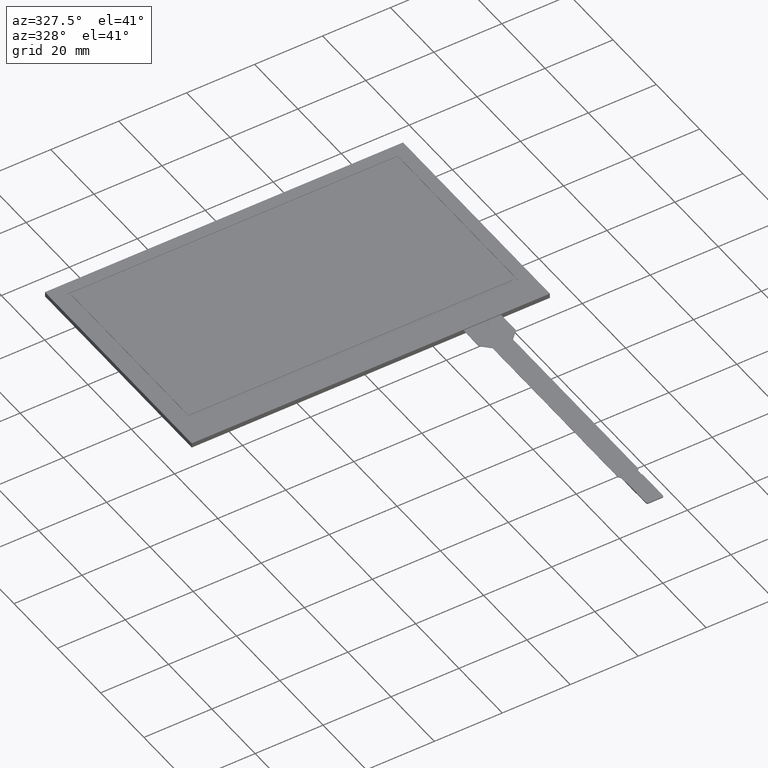
[diagram: clean part render]
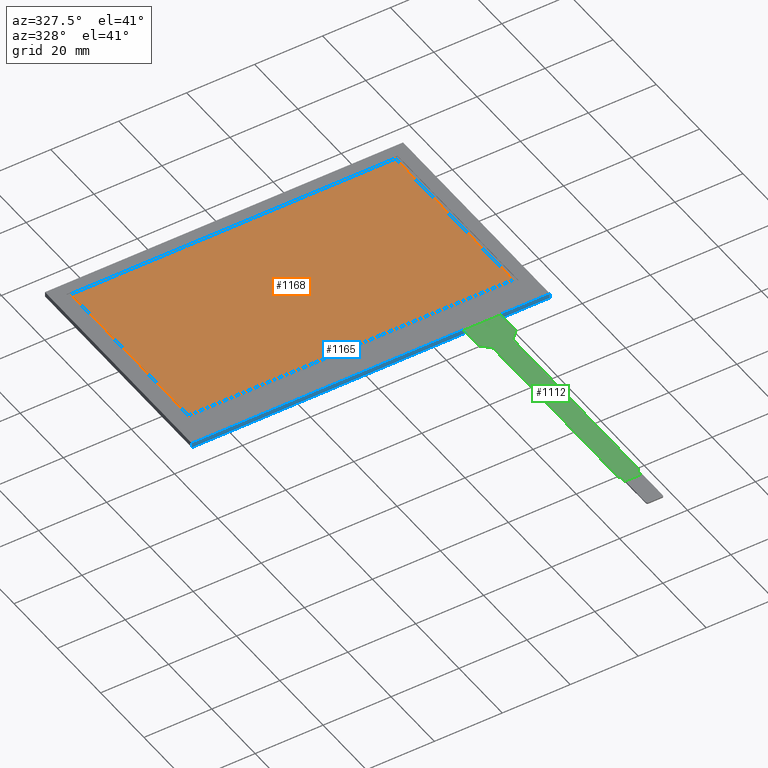
[diagram: same view with three faces highlighted in distinct colors, each labeled with its STEP entity id]
A machine part, auxiliary view with three faces highlighted in distinct colors.
Their STEP definitions:

[orange] entity #1168 — the highlighted planar face has unit normal (0, 0, 1).
#84=PLANE('',#1275);
#143=FACE_OUTER_BOUND('',#205,.T.);
#205=EDGE_LOOP('',(#1089,#1090,#1091,#1092));
#305=LINE('',#1844,#439);
#309=LINE('',#1852,#443);
#312=LINE('',#1858,#446);
#315=LINE('',#1863,#449);
#439=VECTOR('',#1521,10.);
#443=VECTOR('',#1527,10.);
#446=VECTOR('',#1532,10.);
#449=VECTOR('',#1537,10.);
#587=VERTEX_POINT('',#1842);
#588=VERTEX_POINT('',#1843);
#591=VERTEX_POINT('',#1851);
#593=VERTEX_POINT('',#1857);
#737=EDGE_CURVE('',#587,#588,#305,.T.);
#741=EDGE_CURVE('',#591,#587,#309,.T.);
#744=EDGE_CURVE('',#593,#591,#312,.T.);
#747=EDGE_CURVE('',#588,#593,#315,.T.);
#1089=ORIENTED_EDGE('',*,*,#737,.T.);
#1090=ORIENTED_EDGE('',*,*,#747,.T.);
#1091=ORIENTED_EDGE('',*,*,#744,.T.);
#1092=ORIENTED_EDGE('',*,*,#741,.T.);
#1168=ADVANCED_FACE('',(#143),#84,.T.);
#1275=AXIS2_PLACEMENT_3D('',#1915,#1583,#1584);
#1521=DIRECTION('',(1.,0.,0.));
#1527=DIRECTION('',(0.,-1.,0.));
#1532=DIRECTION('',(-1.,0.,0.));
#1537=DIRECTION('',(0.,1.,0.));
#1583=DIRECTION('center_axis',(0.,0.,1.));
#1584=DIRECTION('ref_axis',(1.,0.,0.));
#1842=CARTESIAN_POINT('',(-47.77,-27.18,0.));
#1843=CARTESIAN_POINT('',(47.77,-27.18,0.));
#1844=CARTESIAN_POINT('',(-23.91,-27.18,0.));
#1851=CARTESIAN_POINT('',(-47.77,27.18,0.));
#1852=CARTESIAN_POINT('',(-47.77,12.2725,0.));
#1857=CARTESIAN_POINT('',(47.77,27.18,0.));
#1858=CARTESIAN_POINT('',(23.86,27.18,0.));
#1863=CARTESIAN_POINT('',(47.77,-14.9075,0.));
#1915=CARTESIAN_POINT('Origin',(-0.0499999999999989,-2.63500000000001,0.));

[blue] entity #1165 — the highlighted planar face has unit normal (0, -1, 0).
#40=FACE_BOUND('',#202,.T.);
#81=PLANE('',#1272);
#140=FACE_OUTER_BOUND('',#201,.T.);
#201=EDGE_LOOP('',(#1073,#1074,#1075,#1076));
#202=EDGE_LOOP('',(#1077,#1078,#1079,#1080));
#217=LINE('',#1625,#351);
#240=LINE('',#1685,#374);
#245=LINE('',#1696,#379);
#304=LINE('',#1840,#438);
#331=LINE('',#1897,#465);
#335=LINE('',#1904,#469);
#336=LINE('',#1907,#470);
#337=LINE('',#1908,#471);
#351=VECTOR('',#1307,10.);
#374=VECTOR('',#1364,10.);
#379=VECTOR('',#1375,10.);
#438=VECTOR('',#1518,10.);
#465=VECTOR('',#1565,10.);
#469=VECTOR('',#1571,10.);
#470=VECTOR('',#1574,10.);
#471=VECTOR('',#1575,10.);
#519=VERTEX_POINT('',#1622);
#520=VERTEX_POINT('',#1624);
#540=VERTEX_POINT('',#1684);
#543=VERTEX_POINT('',#1694);
#605=VERTEX_POINT('',#1894);
#606=VERTEX_POINT('',#1896);
#608=VERTEX_POINT('',#1902);
#609=VERTEX_POINT('',#1906);
#628=EDGE_CURVE('',#520,#519,#217,.T.);
#658=EDGE_CURVE('',#540,#520,#240,.T.);
#664=EDGE_CURVE('',#519,#543,#245,.T.);
#736=EDGE_CURVE('',#543,#540,#304,.T.);
#763=EDGE_CURVE('',#605,#606,#331,.T.);
#767=EDGE_CURVE('',#605,#608,#335,.T.);
#768=EDGE_CURVE('',#609,#608,#336,.T.);
#769=EDGE_CURVE('',#606,#609,#337,.T.);
#1073=ORIENTED_EDGE('',*,*,#763,.F.);
#1074=ORIENTED_EDGE('',*,*,#767,.T.);
#1075=ORIENTED_EDGE('',*,*,#768,.F.);
#1076=ORIENTED_EDGE('',*,*,#769,.F.);
#1077=ORIENTED_EDGE('',*,*,#664,.T.);
#1078=ORIENTED_EDGE('',*,*,#736,.T.);
#1079=ORIENTED_EDGE('',*,*,#658,.T.);
#1080=ORIENTED_EDGE('',*,*,#628,.T.);
#1165=ADVANCED_FACE('',(#140,#40),#81,.T.);
#1272=AXIS2_PLACEMENT_3D('',#1905,#1572,#1573);
#1307=DIRECTION('',(1.,8.42674022485887E-17,0.));
#1364=DIRECTION('',(0.,0.,1.));
#1375=DIRECTION('',(0.,0.,-1.));
#1518=DIRECTION('',(-1.,-8.42674022485887E-17,0.));
#1565=DIRECTION('',(1.,8.42674022485887E-17,0.));
#1571=DIRECTION('',(0.,0.,-1.));
#1572=DIRECTION('center_axis',(8.42674022485887E-17,-1.,0.));
#1573=DIRECTION('ref_axis',(-1.,-8.42674022485887E-17,0.));
#1574=DIRECTION('',(-1.,-8.42674022485887E-17,0.));
#1575=DIRECTION('',(0.,0.,-1.));
#1622=CARTESIAN_POINT('',(38.25,-36.55,-0.2));
#1624=CARTESIAN_POINT('',(27.25,-36.55,-0.2));
#1625=CARTESIAN_POINT('',(42.7,-36.55,-0.2));
#1684=CARTESIAN_POINT('',(27.25,-36.55,-0.3));
#1685=CARTESIAN_POINT('',(27.25,-36.55,-0.1));
#1694=CARTESIAN_POINT('',(38.25,-36.55,-0.3));
#1696=CARTESIAN_POINT('',(38.25,-36.55,-0.1));
#1840=CARTESIAN_POINT('',(42.7,-36.55,-0.3));
#1894=CARTESIAN_POINT('',(-52.75,-36.55,0.));
#1896=CARTESIAN_POINT('',(52.65,-36.55,0.));
#1897=CARTESIAN_POINT('',(-52.75,-36.55,0.));
#1902=CARTESIAN_POINT('',(-52.75,-36.55,-1.4));
#1904=CARTESIAN_POINT('',(-52.75,-36.55,0.));
#1905=CARTESIAN_POINT('Origin',(52.65,-36.55,0.));
#1906=CARTESIAN_POINT('',(52.65,-36.55,-1.4));
#1907=CARTESIAN_POINT('',(-52.75,-36.55,-1.4));
#1908=CARTESIAN_POINT('',(52.65,-36.55,0.));

[green] entity #1112 — the highlighted planar face has unit normal (0, 0, 1).
#41=PLANE('',#1193);
#87=FACE_OUTER_BOUND('',#146,.T.);
#146=EDGE_LOOP('',(#777,#778,#779,#780,#781,#782,#783,#784,#785,#786,#787,
#788,#789,#790,#791,#792,#793,#794,#795,#796));
#209=LINE('',#1599,#343);
#210=LINE('',#1603,#344);
#211=LINE('',#1605,#345);
#212=LINE('',#1607,#346);
#213=LINE('',#1611,#347);
#214=LINE('',#1615,#348);
#215=LINE('',#1619,#349);
#216=LINE('',#1623,#350);
#217=LINE('',#1625,#351);
#218=LINE('',#1627,#352);
#219=LINE('',#1631,#353);
#220=LINE('',#1634,#354);
#343=VECTOR('',#1289,10.);
#344=VECTOR('',#1292,10.);
#345=VECTOR('',#1293,10.);
#346=VECTOR('',#1294,10.);
#347=VECTOR('',#1297,10.);
#348=VECTOR('',#1300,10.);
#349=VECTOR('',#1303,10.);
#350=VECTOR('',#1306,10.);
#351=VECTOR('',#1307,10.);
#352=VECTOR('',#1308,10.);
#353=VECTOR('',#1311,10.);
#354=VECTOR('',#1314,10.);
#476=CIRCLE('',#1192,0.5);
#477=CIRCLE('',#1194,0.5);
#478=CIRCLE('',#1195,0.5);
#479=CIRCLE('',#1196,0.5);
#480=CIRCLE('',#1197,0.5);
#481=CIRCLE('',#1198,0.5);
#482=CIRCLE('',#1199,0.5);
#483=CIRCLE('',#1200,0.5);
#505=VERTEX_POINT('',#1592);
#506=VERTEX_POINT('',#1594);
#507=VERTEX_POINT('',#1598);
#508=VERTEX_POINT('',#1600);
#509=VERTEX_POINT('',#1602);
#510=VERTEX_POINT('',#1604);
#511=VERTEX_POINT('',#1606);
#512=VERTEX_POINT('',#1608);
#513=VERTEX_POINT('',#1610);
#514=VERTEX_POINT('',#1612);
#515=VERTEX_POINT('',#1614);
#516=VERTEX_POINT('',#1616);
#517=VERTEX_POINT('',#1618);
#518=VERTEX_POINT('',#1620);
#519=VERTEX_POINT('',#1622);
#520=VERTEX_POINT('',#1624);
#521=VERTEX_POINT('',#1626);
#522=VERTEX_POINT('',#1628);
#523=VERTEX_POINT('',#1630);
#524=VERTEX_POINT('',#1632);
#613=EDGE_CURVE('',#505,#506,#476,.T.);
#615=EDGE_CURVE('',#505,#507,#209,.T.);
#616=EDGE_CURVE('',#508,#507,#477,.T.);
#617=EDGE_CURVE('',#508,#509,#210,.T.);
#618=EDGE_CURVE('',#509,#510,#211,.T.);
#619=EDGE_CURVE('',#510,#511,#212,.T.);
#620=EDGE_CURVE('',#512,#511,#478,.T.);
#621=EDGE_CURVE('',#512,#513,#213,.T.);
#622=EDGE_CURVE('',#514,#513,#479,.T.);
#623=EDGE_CURVE('',#514,#515,#214,.T.);
#624=EDGE_CURVE('',#516,#515,#480,.T.);
#625=EDGE_CURVE('',#516,#517,#215,.T.);
#626=EDGE_CURVE('',#518,#517,#481,.T.);
#627=EDGE_CURVE('',#518,#519,#216,.T.);
#628=EDGE_CURVE('',#520,#519,#217,.T.);
#629=EDGE_CURVE('',#520,#521,#218,.T.);
#630=EDGE_CURVE('',#522,#521,#482,.T.);
#631=EDGE_CURVE('',#522,#523,#219,.T.);
#632=EDGE_CURVE('',#524,#523,#483,.T.);
#633=EDGE_CURVE('',#524,#506,#220,.T.);
#777=ORIENTED_EDGE('',*,*,#613,.F.);
#778=ORIENTED_EDGE('',*,*,#615,.T.);
#779=ORIENTED_EDGE('',*,*,#616,.F.);
#780=ORIENTED_EDGE('',*,*,#617,.T.);
#781=ORIENTED_EDGE('',*,*,#618,.T.);
#782=ORIENTED_EDGE('',*,*,#619,.T.);
#783=ORIENTED_EDGE('',*,*,#620,.F.);
#784=ORIENTED_EDGE('',*,*,#621,.T.);
#785=ORIENTED_EDGE('',*,*,#622,.F.);
#786=ORIENTED_EDGE('',*,*,#623,.T.);
#787=ORIENTED_EDGE('',*,*,#624,.F.);
#788=ORIENTED_EDGE('',*,*,#625,.T.);
#789=ORIENTED_EDGE('',*,*,#626,.F.);
#790=ORIENTED_EDGE('',*,*,#627,.T.);
#791=ORIENTED_EDGE('',*,*,#628,.F.);
#792=ORIENTED_EDGE('',*,*,#629,.T.);
#793=ORIENTED_EDGE('',*,*,#630,.F.);
#794=ORIENTED_EDGE('',*,*,#631,.T.);
#795=ORIENTED_EDGE('',*,*,#632,.F.);
#796=ORIENTED_EDGE('',*,*,#633,.T.);
#1112=ADVANCED_FACE('',(#87),#41,.T.);
#1192=AXIS2_PLACEMENT_3D('',#1595,#1284,#1285);
#1193=AXIS2_PLACEMENT_3D('',#1597,#1287,#1288);
#1194=AXIS2_PLACEMENT_3D('',#1601,#1290,#1291);
#1195=AXIS2_PLACEMENT_3D('',#1609,#1295,#1296);
#1196=AXIS2_PLACEMENT_3D('',#1613,#1298,#1299);
#1197=AXIS2_PLACEMENT_3D('',#1617,#1301,#1302);
#1198=AXIS2_PLACEMENT_3D('',#1621,#1304,#1305);
#1199=AXIS2_PLACEMENT_3D('',#1629,#1309,#1310);
#1200=AXIS2_PLACEMENT_3D('',#1633,#1312,#1313);
#1284=DIRECTION('center_axis',(0.,0.,-1.));
#1285=DIRECTION('ref_axis',(-0.92387953251128,-0.382683432365107,0.));
#1287=DIRECTION('center_axis',(0.,0.,1.));
#1288=DIRECTION('ref_axis',(1.,0.,0.));
#1289=DIRECTION('',(0.707106781186551,-0.707106781186544,0.));
#1290=DIRECTION('center_axis',(0.,0.,1.));
#1291=DIRECTION('ref_axis',(0.923879532511294,0.382683432365074,0.));
#1292=DIRECTION('',(0.,-1.,0.));
#1293=DIRECTION('',(1.,0.,0.));
#1294=DIRECTION('',(-3.70074341541719E-16,1.,0.));
#1295=DIRECTION('center_axis',(0.,0.,1.));
#1296=DIRECTION('ref_axis',(-0.92387953251128,0.382683432365107,0.));
#1297=DIRECTION('',(0.707106781186551,0.707106781186544,0.));
#1298=DIRECTION('center_axis',(0.,0.,-1.));
#1299=DIRECTION('ref_axis',(0.923879532511279,-0.38268343236511,0.));
#1300=DIRECTION('',(-6.125368411725E-16,1.,0.));
#1301=DIRECTION('center_axis',(0.,0.,1.));
#1302=DIRECTION('ref_axis',(-0.923879532511292,0.382683432365077,0.));
#1303=DIRECTION('',(0.707106781186546,0.707106781186549,0.));
#1304=DIRECTION('center_axis',(0.,0.,-1.));
#1305=DIRECTION('ref_axis',(0.923879532511287,-0.38268343236509,0.));
#1306=DIRECTION('',(0.,1.,0.));
#1307=DIRECTION('',(1.,8.42674022485887E-17,0.));
#1308=DIRECTION('',(0.,-1.,0.));
#1309=DIRECTION('center_axis',(0.,0.,-1.));
#1310=DIRECTION('ref_axis',(-0.923879532511287,-0.38268343236509,0.));
#1311=DIRECTION('',(0.707106781186547,-0.707106781186548,0.));
#1312=DIRECTION('center_axis',(0.,0.,1.));
#1313=DIRECTION('ref_axis',(0.923879532511287,0.38268343236509,0.));
#1314=DIRECTION('',(1.53134210293125E-16,-1.,0.));
#1592=CARTESIAN_POINT('',(29.8964466094067,-104.196446609407,-0.2));
#1594=CARTESIAN_POINT('',(29.75,-103.842893218813,-0.2));
#1595=CARTESIAN_POINT('Origin',(30.25,-103.842893218813,-0.2));
#1597=CARTESIAN_POINT('Origin',(32.75,-76.55,-0.2));
#1598=CARTESIAN_POINT('',(30.1035533905933,-104.403553390593,-0.2));
#1599=CARTESIAN_POINT('',(29.75,-104.05,-0.2));
#1600=CARTESIAN_POINT('',(30.25,-104.757106781187,-0.2));
#1601=CARTESIAN_POINT('Origin',(29.75,-104.757106781187,-0.2));
#1602=CARTESIAN_POINT('',(30.25,-106.55,-0.2));
#1603=CARTESIAN_POINT('',(30.25,-104.55,-0.2));
#1604=CARTESIAN_POINT('',(35.25,-106.55,-0.2));
#1605=CARTESIAN_POINT('',(34.,-106.55,-0.2));
#1606=CARTESIAN_POINT('',(35.25,-104.757106781187,-0.2));
#1607=CARTESIAN_POINT('',(35.25,-116.55,-0.2));
#1608=CARTESIAN_POINT('',(35.3964466094067,-104.403553390593,-0.2));
#1609=CARTESIAN_POINT('Origin',(35.75,-104.757106781187,-0.2));
#1610=CARTESIAN_POINT('',(35.6035533905933,-104.196446609407,-0.2));
#1611=CARTESIAN_POINT('',(35.25,-104.55,-0.2));
#1612=CARTESIAN_POINT('',(35.75,-103.842893218813,-0.2));
#1613=CARTESIAN_POINT('Origin',(35.25,-103.842893218813,-0.2));
#1614=CARTESIAN_POINT('',(35.75,-46.2571067811865,-0.2));
#1615=CARTESIAN_POINT('',(35.75,-104.05,-0.2));
#1616=CARTESIAN_POINT('',(35.8964466094067,-45.9035533905933,-0.2));
#1617=CARTESIAN_POINT('Origin',(36.25,-46.2571067811865,-0.2));
#1618=CARTESIAN_POINT('',(38.1035533905933,-43.6964466094067,-0.2));
#1619=CARTESIAN_POINT('',(35.75,-46.05,-0.2));
#1620=CARTESIAN_POINT('',(38.25,-43.3428932188134,-0.2));
#1621=CARTESIAN_POINT('Origin',(37.75,-43.3428932188134,-0.2));
#1622=CARTESIAN_POINT('',(38.25,-36.55,-0.2));
#1623=CARTESIAN_POINT('',(38.25,-43.55,-0.2));
#1624=CARTESIAN_POINT('',(27.25,-36.55,-0.2));
#1625=CARTESIAN_POINT('',(42.7,-36.55,-0.2));
#1626=CARTESIAN_POINT('',(27.25,-43.3428932188134,-0.2));
#1627=CARTESIAN_POINT('',(27.25,-36.55,-0.2));
#1628=CARTESIAN_POINT('',(27.3964466094067,-43.6964466094067,-0.2));
#1629=CARTESIAN_POINT('Origin',(27.75,-43.3428932188134,-0.2));
#1630=CARTESIAN_POINT('',(29.6035533905933,-45.9035533905933,-0.2));
#1631=CARTESIAN_POINT('',(27.25,-43.55,-0.2));
#1632=CARTESIAN_POINT('',(29.75,-46.2571067811866,-0.2));
#1633=CARTESIAN_POINT('Origin',(29.25,-46.2571067811866,-0.2));
#1634=CARTESIAN_POINT('',(29.75,-46.05,-0.2));